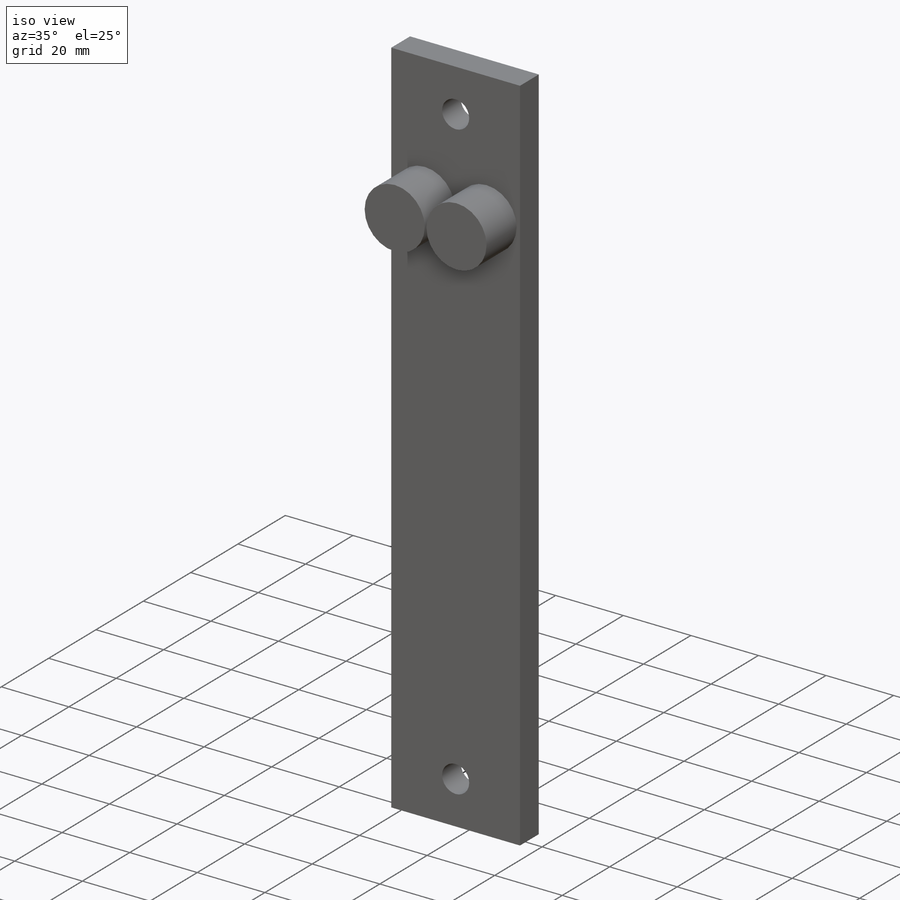
[diagram: iso view]
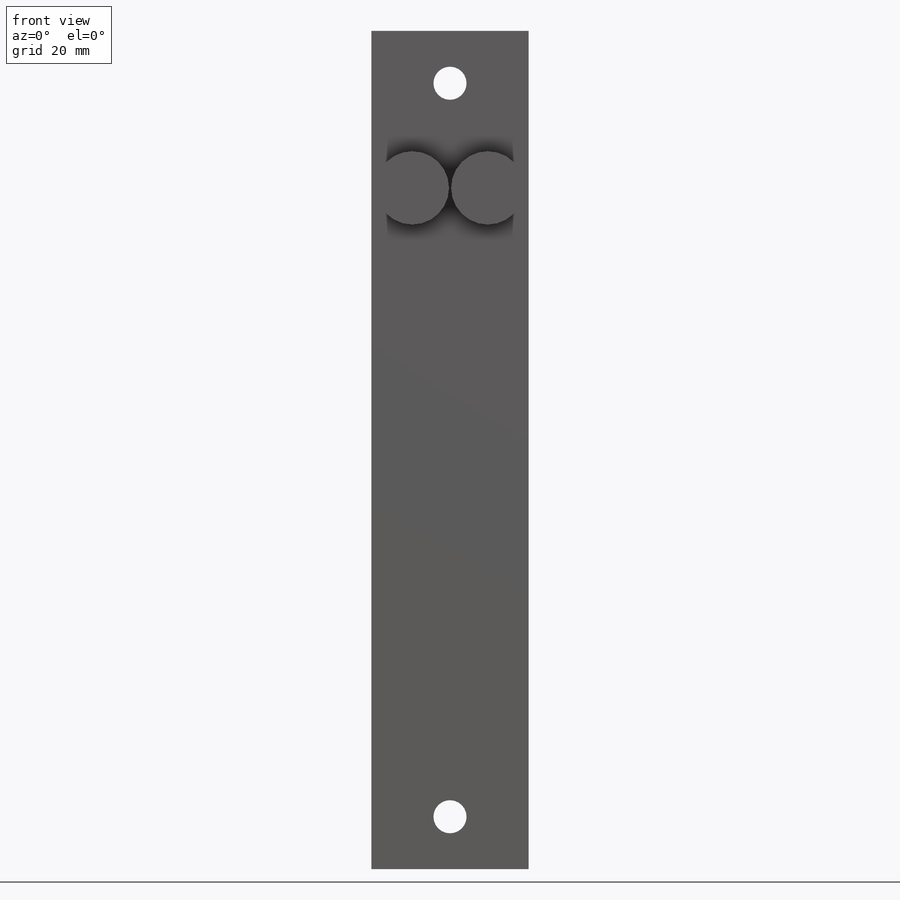
[diagram: front view]
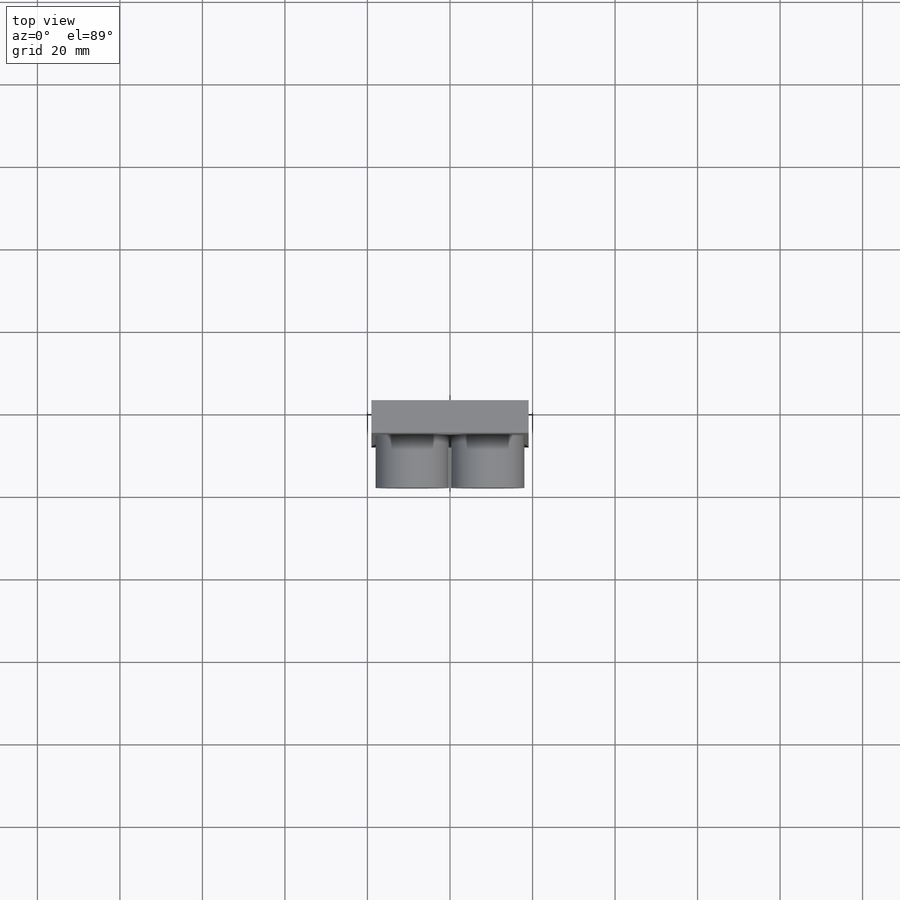
[diagram: top view]
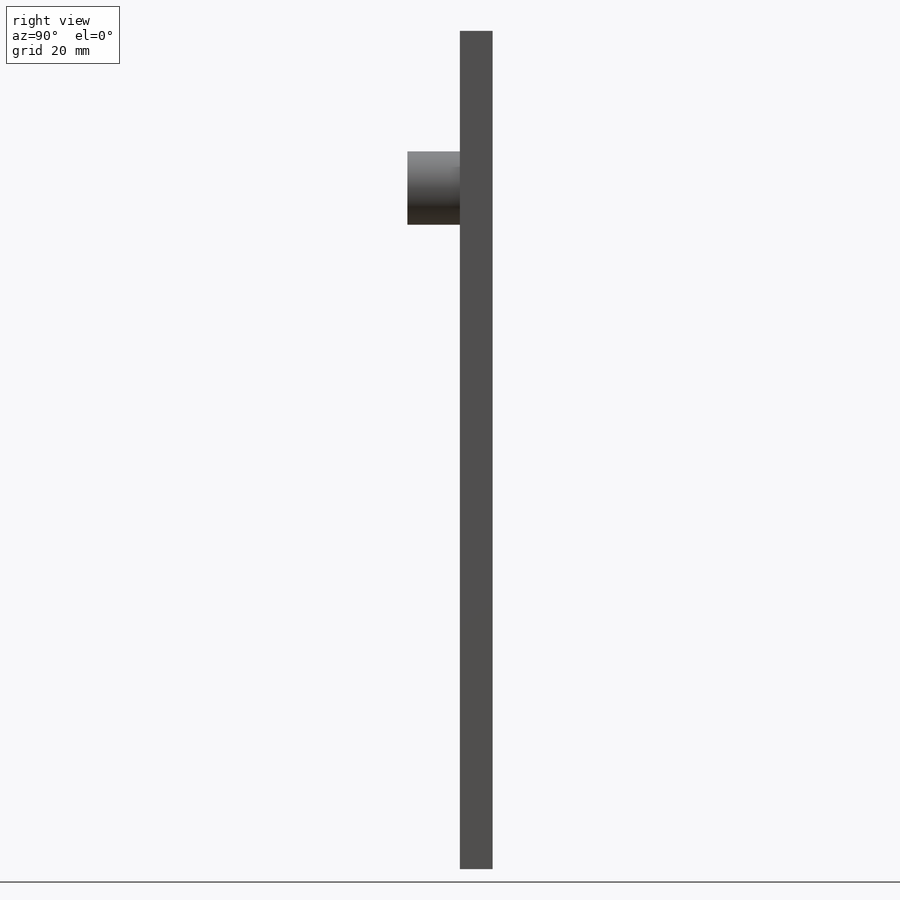
[diagram: right view]
SOLIDWORKS PART (.sldprt)
format: sldprt  version: not decoded by parser v0  size: 165,888 bytes
history: native  units: mm
features: sketch x4, extrude x2, material x1, hole x1, mirror x1 (+13 scaffold rows collapsed)
feature tree (22):
  scaffold x13  (default folders/planes/origin — collapsed)
  material  "Material <not specified>"
  sketch  "Sketch1"  dims[D1=38.1mm D2=19.05mm D3=203.2mm D4=101.6mm]
  extrude  "Boss-Extrude1"  Depth=7.9375mm
  hole  "O (0.316) Diameter Hole1"  Diameter=8.0264mm Depth=7.9375mm
  sketch  "Sketch3"  dims[D1=88.9mm]
  sketch  "Sketch2"  dims[hole-wizard template sketch: 59 standard entries collapsed; hole parameters kept: c18.Thru Hole Dia.=8.0264mm c18.Thru Hole Depth=7.9375mm]
  mirror  "Mirror1"
  sketch  "Sketch4"  dims[D2=17.78mm D4=17.78mm D1=9.906mm D3=9.906mm D5=38.1mm D6=38.1mm]
  extrude  "Boss-Extrude2"  Depth=12.7mm
decode coverage: 7 of 8 modeling features carry decoded parameters
note: ~ marks probable driven/reference dimensions
note: suppression state not decoded; provenance and decode notes live in map.json
